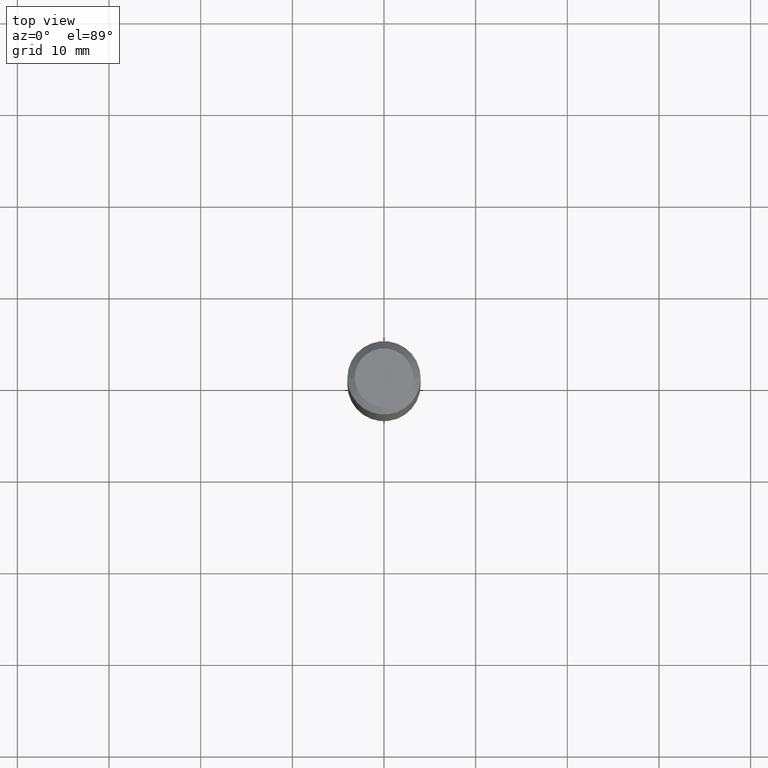
[diagram: clean part render]
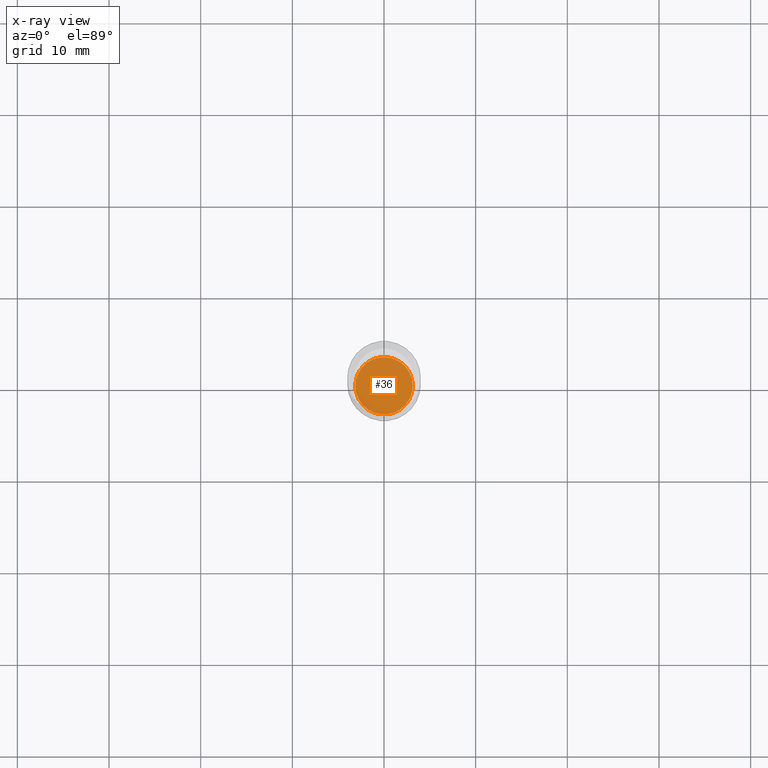
[diagram: x-ray — body ghosted, one internal face saturated and labeled with its STEP entity id]
A machine part, top view, then the same camera in x-ray: the body is ghosted and one INTERNAL B-rep face — a face not visible from any outside direction — is saturated and labeled: STEP entity #36.
In plain terms, the highlighted planar face has unit normal (-0, 0, 1).
Its self-contained STEP definition (entity closure, byte-faithful):
#36 = ADVANCED_FACE ( 'NONE', ( #272 ), #391, .F. ) ;
#40 = EDGE_CURVE ( 'NONE', #98, #96, #121, .T. ) ;
#44 = DIRECTION ( 'NONE',  ( -2.445468806185136597E-29, 3.491481338843145583E-15, 1.000000000000000000 ) ) ;
#85 = CARTESIAN_POINT ( 'NONE',  ( 4.938868800971501707E-29, -7.051395711927616472E-15, -2.019600000000000062 ) ) ;
#91 = DIRECTION ( 'NONE',  ( 1.000000000000000000, -6.982962677686265922E-15, 0.000000000000000000 ) ) ;
#96 = VERTEX_POINT ( 'NONE', #350 ) ;
#98 = VERTEX_POINT ( 'NONE', #307 ) ;
#121 = CIRCLE ( 'NONE', #417, 0.1234999999999999987 ) ;
#124 = CIRCLE ( 'NONE', #420, 0.1234999999999999987 ) ;
#132 = ORIENTED_EDGE ( 'NONE', *, *, #146, .F. ) ;
#146 = EDGE_CURVE ( 'NONE', #96, #98, #124, .T. ) ;
#148 = CARTESIAN_POINT ( 'NONE',  ( 4.938868800971501707E-29, -7.051395711927616472E-15, -2.019600000000000062 ) ) ;
#162 = CARTESIAN_POINT ( 'NONE',  ( 4.938868800971501707E-29, -7.051395711927616472E-15, -2.019600000000000062 ) ) ;
#218 = ORIENTED_EDGE ( 'NONE', *, *, #40, .F. ) ;
#270 = DIRECTION ( 'NONE',  ( -2.438088387897960049E-29, 3.491481338843145188E-15, 1.000000000000000000 ) ) ;
#272 = FACE_OUTER_BOUND ( 'NONE', #405, .T. ) ;
#286 = DIRECTION ( 'NONE',  ( 1.000000000000000000, -6.982962677686265922E-15, 0.000000000000000000 ) ) ;
#307 = CARTESIAN_POINT ( 'NONE',  ( -0.1234999999999999987, -6.171226206089782734E-15, -2.019600000000000062 ) ) ;
#325 = AXIS2_PLACEMENT_3D ( 'NONE', #148, #270, #351 ) ;
#350 = CARTESIAN_POINT ( 'NONE',  ( 0.1234999999999999987, -7.913791602621870789E-15, -2.019600000000000062 ) ) ;
#351 = DIRECTION ( 'NONE',  ( 1.000000000000000000, -6.982962677686265922E-15, 4.876176775795935793E-29 ) ) ;
#391 = PLANE ( 'NONE',  #325 ) ;
#405 = EDGE_LOOP ( 'NONE', ( #132, #218 ) ) ;
#417 = AXIS2_PLACEMENT_3D ( 'NONE', #162, #464, #286 ) ;
#420 = AXIS2_PLACEMENT_3D ( 'NONE', #85, #44, #91 ) ;
#464 = DIRECTION ( 'NONE',  ( -2.445468806185136597E-29, 3.491481338843145583E-15, 1.000000000000000000 ) ) ;